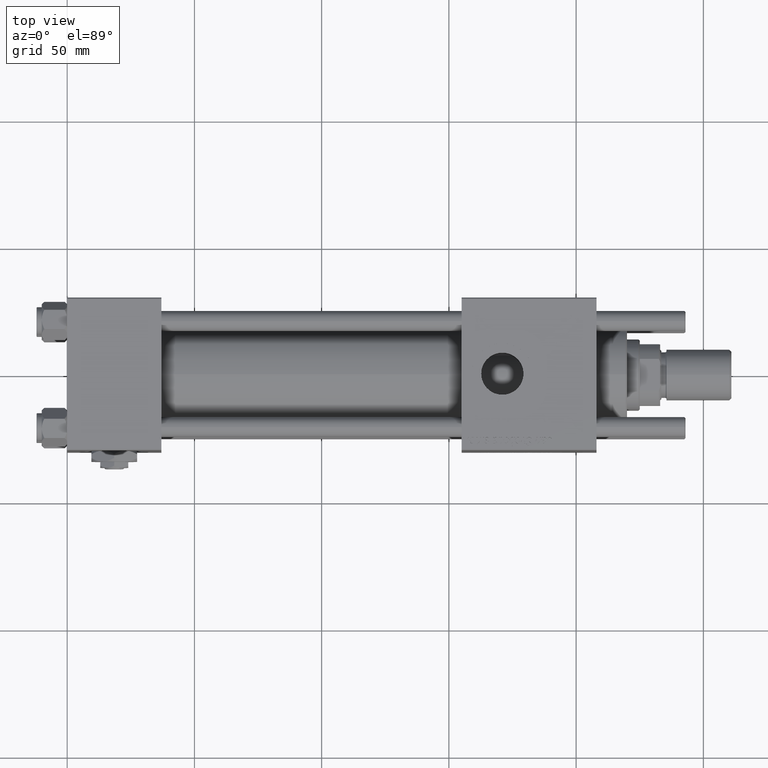
[diagram: clean part render]
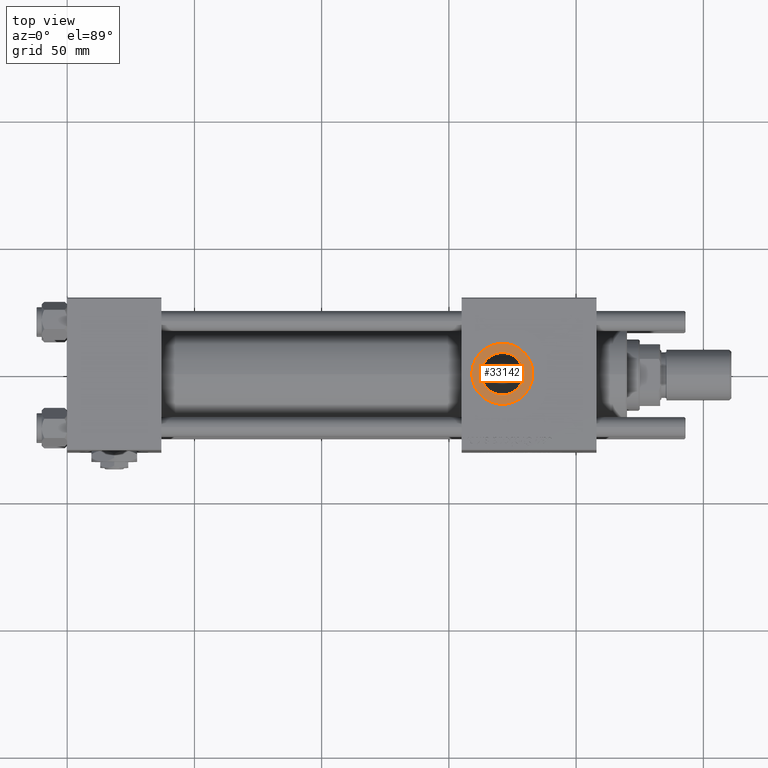
[diagram: same view with one face highlighted and labeled with its STEP entity id]
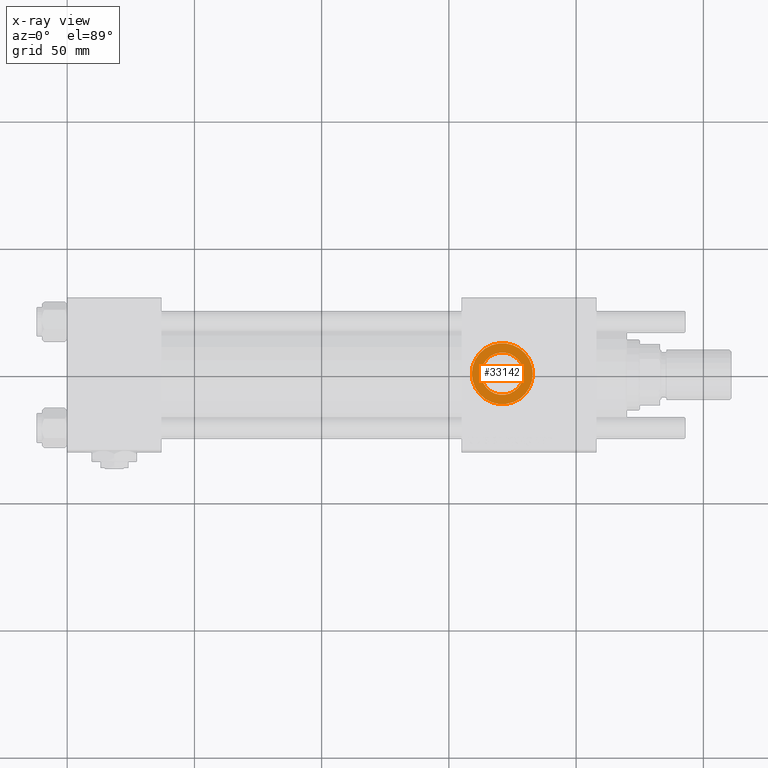
[diagram: x-ray of the same camera — body ghosted, the highlighted face saturated]
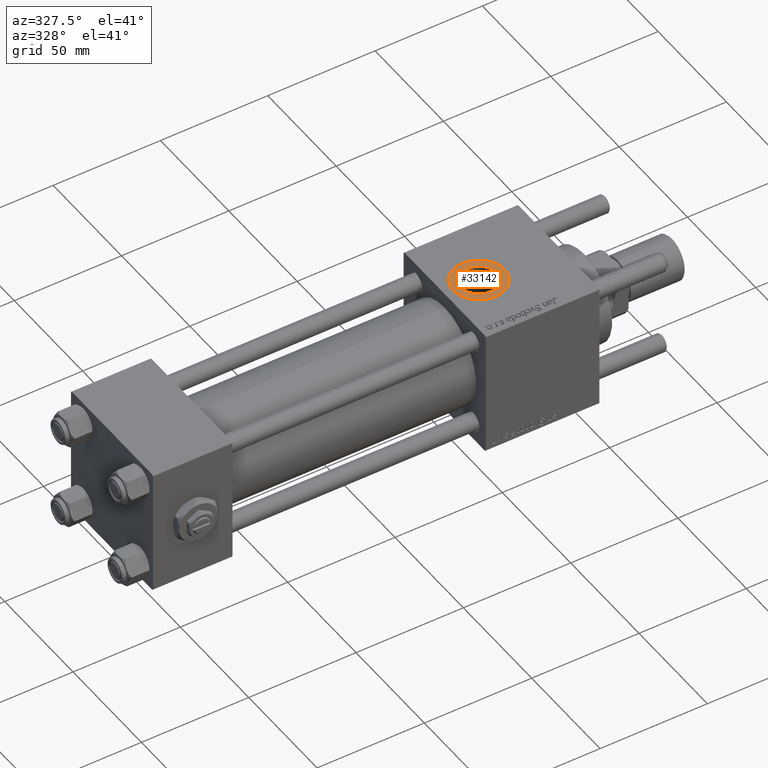
[diagram: same view with one face highlighted and labeled with its STEP entity id]
A machine part, top view. The second image highlights one B-rep face of the part: STEP entity #33142.
The next image is the same camera in x-ray: the body ghosted, the highlighted face saturated — about 0% of this face is hidden behind the body in this view.
A second angle (auxiliary view) of the same face is appended — the face is thin or edge-on in the first view.
In plain terms, the highlighted planar face has unit normal (0, 0, 1).
Its self-contained STEP definition (entity closure, byte-faithful):
#1451 = DIRECTION ( 'NONE',  ( 1.000000000000000000, 0.000000000000000000, -0.000000000000000000 ) ) ;
#2716 = AXIS2_PLACEMENT_3D ( 'NONE', #40576, #13726, #31899 ) ;
#3712 = CIRCLE ( 'NONE', #27554, 8.330000000000003624 ) ;
#4036 = VERTEX_POINT ( 'NONE', #19152 ) ;
#4598 = ORIENTED_EDGE ( 'NONE', *, *, #23664, .T. ) ;
#4846 = VERTEX_POINT ( 'NONE', #58555 ) ;
#6520 = DIRECTION ( 'NONE',  ( 0.000000000000000000, 0.000000000000000000, 1.000000000000000000 ) ) ;
#6635 = CARTESIAN_POINT ( 'NONE',  ( 170.9999999999999716, -3.469446951953613794E-15, 29.79999999999999716 ) ) ;
#7689 = CARTESIAN_POINT ( 'NONE',  ( 170.9999999999999716, -3.469446951953613794E-15, 29.79999999999999716 ) ) ;
#8945 = DIRECTION ( 'NONE',  ( 1.000000000000000000, 0.000000000000000000, 0.000000000000000000 ) ) ;
#9960 = CIRCLE ( 'NONE', #56684, 12.00000000000001066 ) ;
#10534 = DIRECTION ( 'NONE',  ( -0.000000000000000000, -0.000000000000000000, -1.000000000000000000 ) ) ;
#10924 = EDGE_LOOP ( 'NONE', ( #43028, #49686 ) ) ;
#11589 = PLANE ( 'NONE',  #23519 ) ;
#13726 = DIRECTION ( 'NONE',  ( 0.000000000000000000, 0.000000000000000000, 1.000000000000000000 ) ) ;
#13990 = EDGE_CURVE ( 'NONE', #25794, #4036, #16061, .T. ) ;
#15416 = VERTEX_POINT ( 'NONE', #52693 ) ;
#16061 = CIRCLE ( 'NONE', #2716, 12.00000000000001066 ) ;
#16969 = EDGE_LOOP ( 'NONE', ( #4598, #55574 ) ) ;
#19152 = CARTESIAN_POINT ( 'NONE',  ( 183.0000000000000000, -3.469446951953613794E-15, 29.79999999999999716 ) ) ;
#23519 = AXIS2_PLACEMENT_3D ( 'NONE', #47974, #6520, #1451 ) ;
#23664 = EDGE_CURVE ( 'NONE', #4036, #25794, #9960, .T. ) ;
#25794 = VERTEX_POINT ( 'NONE', #50777 ) ;
#26185 = DIRECTION ( 'NONE',  ( 0.000000000000000000, 0.000000000000000000, 1.000000000000000000 ) ) ;
#27554 = AXIS2_PLACEMENT_3D ( 'NONE', #6635, #10534, #52573 ) ;
#31380 = CIRCLE ( 'NONE', #56175, 8.330000000000003624 ) ;
#31899 = DIRECTION ( 'NONE',  ( 1.000000000000000000, 0.000000000000000000, 0.000000000000000000 ) ) ;
#33142 = ADVANCED_FACE ( 'NONE', ( #52156, #43202 ), #11589, .T. ) ;
#40576 = CARTESIAN_POINT ( 'NONE',  ( 170.9999999999999716, -3.469446951953613794E-15, 29.79999999999999716 ) ) ;
#41237 = EDGE_CURVE ( 'NONE', #15416, #4846, #31380, .T. ) ;
#43028 = ORIENTED_EDGE ( 'NONE', *, *, #41237, .T. ) ;
#43202 = FACE_OUTER_BOUND ( 'NONE', #16969, .T. ) ;
#45717 = EDGE_CURVE ( 'NONE', #4846, #15416, #3712, .T. ) ;
#47974 = CARTESIAN_POINT ( 'NONE',  ( 170.9999999999999716, -3.469446951953613794E-15, 29.79999999999999716 ) ) ;
#49686 = ORIENTED_EDGE ( 'NONE', *, *, #45717, .T. ) ;
#50097 = DIRECTION ( 'NONE',  ( -0.000000000000000000, -0.000000000000000000, -1.000000000000000000 ) ) ;
#50777 = CARTESIAN_POINT ( 'NONE',  ( 158.9999999999999716, -1.999870792976789650E-15, 29.79999999999999716 ) ) ;
#52156 = FACE_BOUND ( 'NONE', #10924, .T. ) ;
#52573 = DIRECTION ( 'NONE',  ( 1.000000000000000000, 0.000000000000000000, 0.000000000000000000 ) ) ;
#52693 = CARTESIAN_POINT ( 'NONE',  ( 162.6699999999999875, -3.469446951953613794E-15, 29.79999999999999716 ) ) ;
#53038 = DIRECTION ( 'NONE',  ( 1.000000000000000000, 0.000000000000000000, 0.000000000000000000 ) ) ;
#53714 = CARTESIAN_POINT ( 'NONE',  ( 170.9999999999999716, -3.469446951953613794E-15, 29.79999999999999716 ) ) ;
#55574 = ORIENTED_EDGE ( 'NONE', *, *, #13990, .T. ) ;
#56175 = AXIS2_PLACEMENT_3D ( 'NONE', #53714, #50097, #8945 ) ;
#56684 = AXIS2_PLACEMENT_3D ( 'NONE', #7689, #26185, #53038 ) ;
#58555 = CARTESIAN_POINT ( 'NONE',  ( 179.3299999999999841, -2.449316168263869821E-15, 29.79999999999999716 ) ) ;